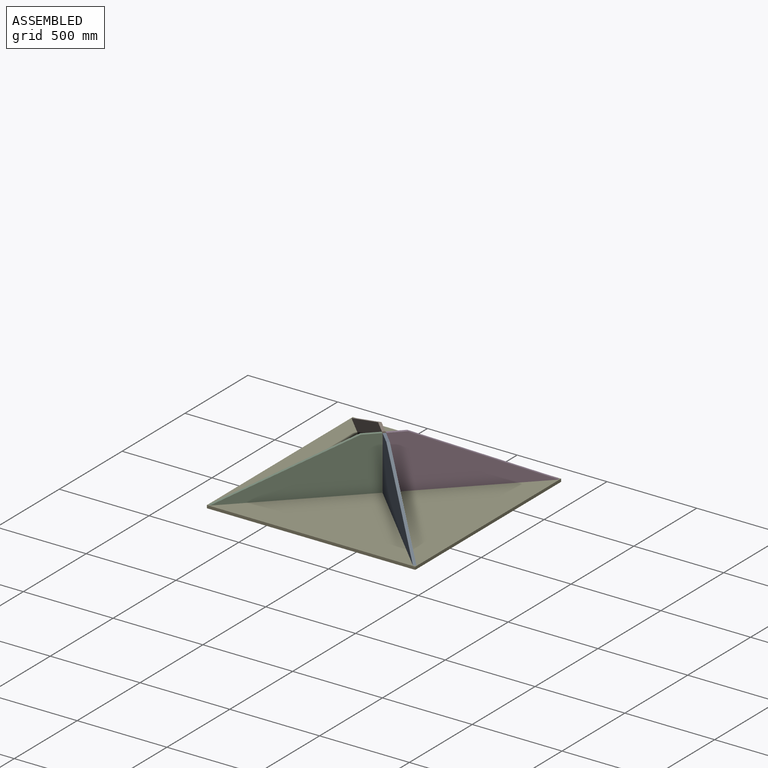
[diagram: assembled view]
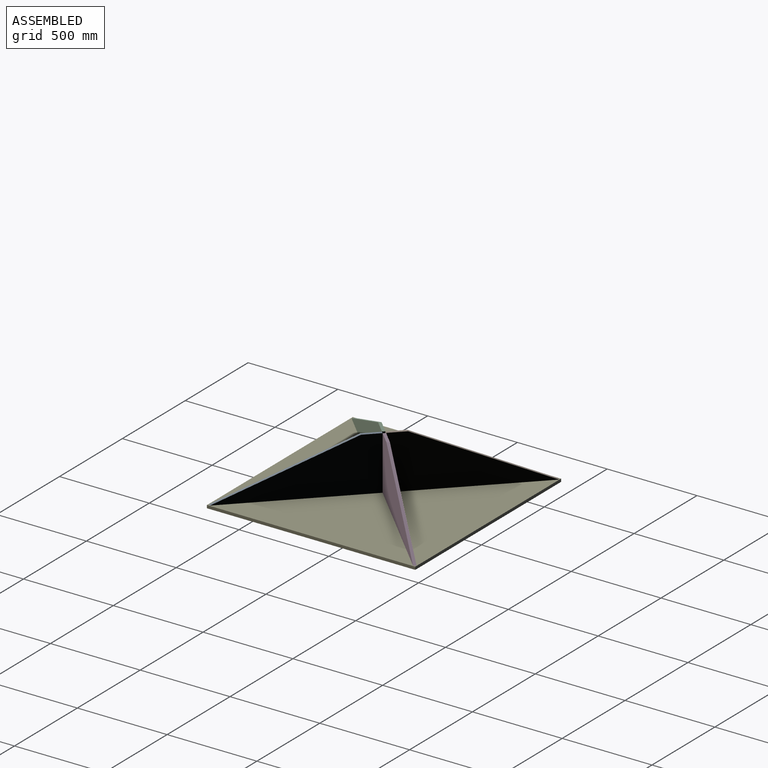
[diagram: assembled view, second angle]
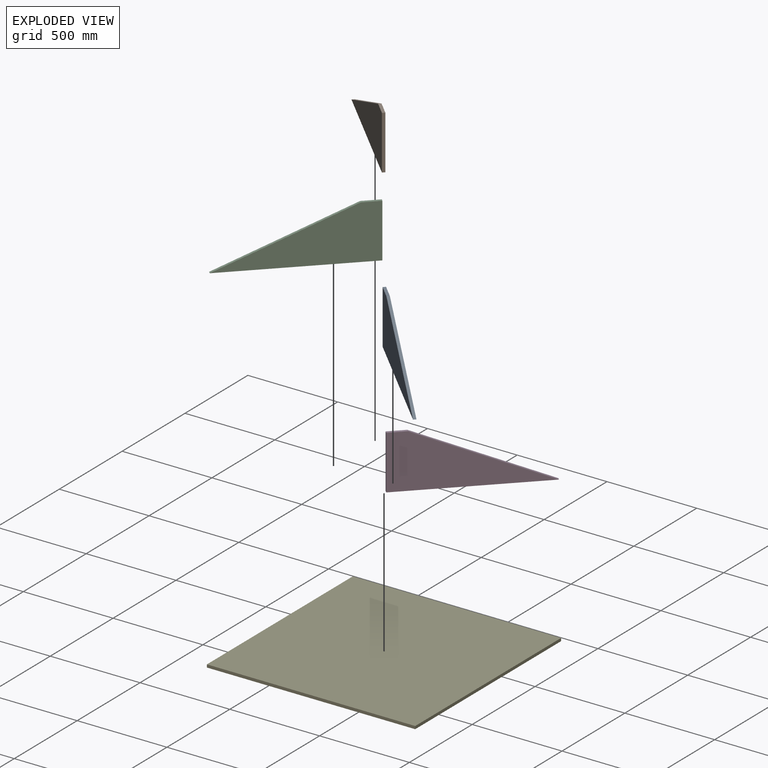
[diagram: exploded view]
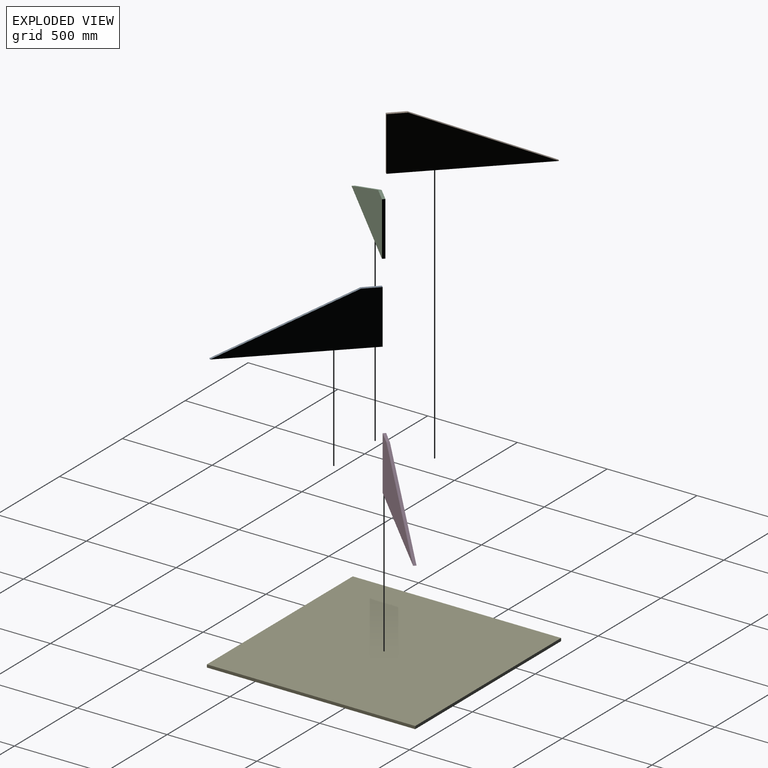
[diagram: exploded view, second angle]
ASSEMBLY  parts=5 mates=6
PART A: 6 faces, bbox 800x16x300 mm
  f0: plane 300x16mm, normal (-1,0,0), area 4800mm2, adj f1,f3,f4,f5
  f1: plane 800x16mm, normal (0,0,-1), area 12800mm2, adj f0,f2,f4,f5
  f2: plane 700x300mm, normal (0.39,0,0.92), area 12185.2mm2, adj f1,f3,f4,f5
  f3: plane 100x16mm, normal (0,0,1), area 1600mm2, adj f0,f2,f4,f5
  f4: plane 800x300mm, normal (0,-1,0), area 135000mm2, adj f0,f1,f2,f3
  f5: plane 800x300mm, normal (0,1,0), area 135000mm2, adj f0,f1,f2,f3
PART B: same geometry as A
PART C: same geometry as A
PART D: same geometry as A
PART E: 6 faces, bbox 1160x1160x16 mm
  f0: plane 1160x16mm, normal (0,-1,0), area 18560mm2, adj f1,f3,f4,f5
  f1: plane 1160x16mm, normal (1,0,0), area 18560mm2, adj f0,f2,f4,f5
  f2: plane 1160x16mm, normal (0,1,0), area 18560mm2, adj f1,f3,f4,f5
  f3: plane 1160x16mm, normal (-1,0,0), area 18560mm2, adj f0,f2,f4,f5
  f4: plane 1160x1160mm, normal (0,0,1), area 1345600mm2, adj f0,f1,f2,f3
  f5: plane 1160x1160mm, normal (0,0,-1), area 1345600mm2, adj f0,f1,f2,f3
PLACE A rot(axis=(0,0,-1),45deg) t=(-721.48,-154.85,409.89)mm
PLACE B rot(axis=(0,0,1),135deg) t=(-744.98,-153.98,409.89)mm
PLACE C rot(axis=(0,0,-1),135deg) t=(-733.37,-167,409.89)mm
PLACE D rot(axis=(0,0,1),45deg) t=(-731.91,-142.92,409.89)mm
PLACE E t=(-732.66,-155.07,393.89)mm fixed
MATE planar D.f1 <-> E.f4  axis (0,0,-1) through (-726.26,-148.58,409.89)mm
MATE planar C.f1 <-> E.f4  axis (0,0,-1) through (-1021.87,-444.19,409.89)mm
MATE planar A.f5 <-> B.f4  axis (0.71,0.71,0) through (-530.3,-346.03,521.01)mm
MATE planar C.f5 <-> D.f4  axis (0.71,-0.71,0) through (-924.55,-358.18,521.01)mm
MATE planar A.f1 <-> E.f4  axis (0,0,-1) through (-727.13,-160.51,409.89)mm
MATE planar B.f1 <-> E.f4  axis (0,0,-1) through (-1022.16,134.52,409.89)mm
